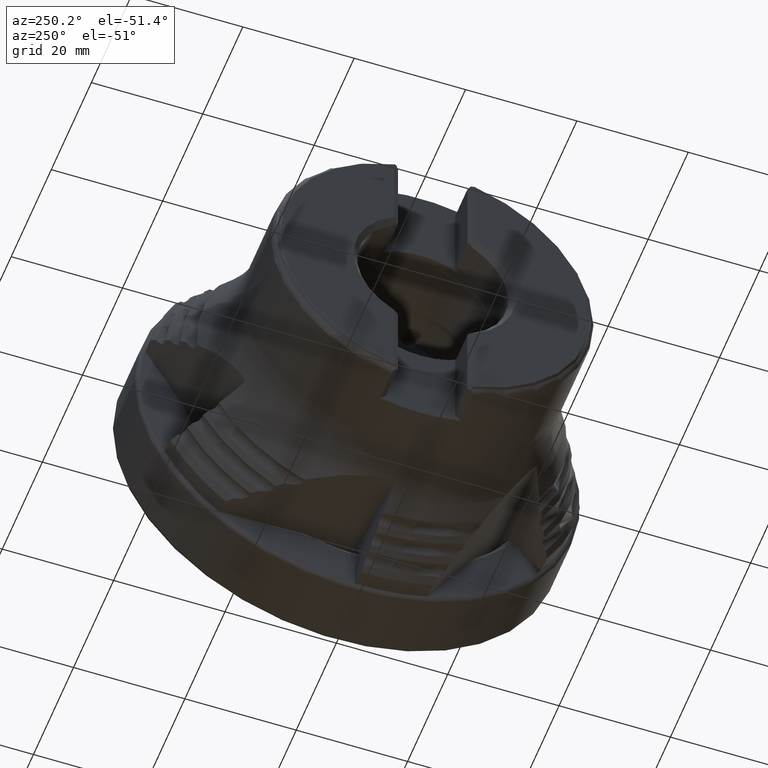
[diagram: clean part render]
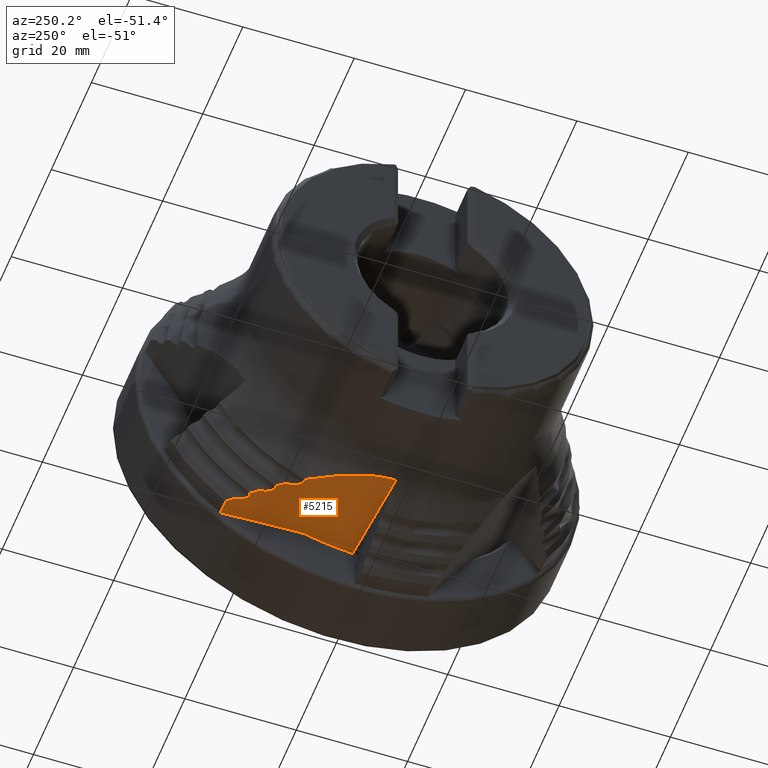
[diagram: same view with one face highlighted and labeled with its STEP entity id]
A machine part, auxiliary view. The second image highlights one B-rep face of the part: STEP entity #5215.
In plain terms, the highlighted planar face has unit normal (-0, -0, -1).
Its self-contained STEP definition (entity closure, byte-faithful):
#28 = VECTOR ( 'NONE', #4252, 1000.000000000000100 ) ;
#31 = CARTESIAN_POINT ( 'NONE',  ( -11.15176865470790100, 24.83485453953767300, -30.20000000000000300 ) ) ;
#38 = CARTESIAN_POINT ( 'NONE',  ( -24.68323503598216100, 10.52525373887807600, -30.19999999999999200 ) ) ;
#123 = CARTESIAN_POINT ( 'NONE',  ( -11.38472657982276800, 20.17031615068911400, -30.19999999999999900 ) ) ;
#192 = CARTESIAN_POINT ( 'NONE',  ( -19.75081145665694000, 18.05690504971553500, -30.19999999999999600 ) ) ;
#234 = CARTESIAN_POINT ( 'NONE',  ( -15.60835140516776700, 21.86658135694425200, -30.19999999999999900 ) ) ;
#353 = CARTESIAN_POINT ( 'NONE',  ( -18.50410983384340800, 18.46630114951239700, -30.19999999999999600 ) ) ;
#386 = CARTESIAN_POINT ( 'NONE',  ( -11.29499181378707500, 8.313862800456060900, -30.20000000000000300 ) ) ;
#427 = ORIENTED_EDGE ( 'NONE', *, *, #5874, .F. ) ;
#459 = CARTESIAN_POINT ( 'NONE',  ( -17.52841270701865300, 20.74172029161510300, -30.19999999999999600 ) ) ;
#521 = VERTEX_POINT ( 'NONE', #7641 ) ;
#572 = CARTESIAN_POINT ( 'NONE',  ( -25.11851311587522800, 9.634191474631345300, -30.19999999999999900 ) ) ;
#576 = CARTESIAN_POINT ( 'NONE',  ( -21.56860982534922800, 14.27920625437900300, -30.19999999999999900 ) ) ;
#636 = B_SPLINE_CURVE_WITH_KNOTS ( 'NONE', 3,
 ( #3550, #7074, #7655, #38, #572, #1774 ),
 .UNSPECIFIED., .F., .F.,
 ( 4, 2, 4 ),
 ( 0.03023065135700396500, 0.03317784385178212900, 0.03612503634656029400 ),
 .UNSPECIFIED. ) ;
#683 = EDGE_CURVE ( 'NONE', #6895, #4661, #2320, .T. ) ;
#723 = CARTESIAN_POINT ( 'NONE',  ( -26.71285435141210500, 5.687365923409885200, -30.19999999999999200 ) ) ;
#785 = CARTESIAN_POINT ( 'NONE',  ( -11.55632441456366700, 9.133016004765014600, -30.19999999999999600 ) ) ;
#834 = CARTESIAN_POINT ( 'NONE',  ( -15.91449155709633700, 21.60324361928368500, -30.19999999999999900 ) ) ;
#934 = CARTESIAN_POINT ( 'NONE',  ( -14.15146900721581200, 24.42255260260453700, -30.19999999999999600 ) ) ;
#940 = CARTESIAN_POINT ( 'NONE',  ( -9.746400671993710000, 4.834601600164617700, -30.19999999999999200 ) ) ;
#941 = CARTESIAN_POINT ( 'NONE',  ( -18.80206893080899600, 18.15424675954207200, -30.19999999999999600 ) ) ;
#966 = EDGE_CURVE ( 'NONE', #3708, #5080, #6037, .T. ) ;
#1023 = PLANE ( 'NONE',  #5163 ) ;
#1142 = CARTESIAN_POINT ( 'NONE',  ( -19.75081145665694000, 18.05690504971553500, -30.19999999999999600 ) ) ;
#1148 = CARTESIAN_POINT ( 'NONE',  ( -21.85596204691621100, 13.99924561896360600, -30.19999999999999600 ) ) ;
#1305 = CARTESIAN_POINT ( 'NONE',  ( -27.31015063050067200, 3.736343504964987800, -30.20000000000000300 ) ) ;
#1367 = CARTESIAN_POINT ( 'NONE',  ( -11.68791464155855500, 9.976532382528775500, -30.20000000000000600 ) ) ;
#1409 = CARTESIAN_POINT ( 'NONE',  ( -16.29204934966850300, 21.45685720348604200, -30.19999999999999600 ) ) ;
#1412 = CARTESIAN_POINT ( 'NONE',  ( -8.322202463033708100, 2.047701993977632600, -30.19999999999999900 ) ) ;
#1424 = B_SPLINE_CURVE_WITH_KNOTS ( 'NONE', 3,
 ( #7011, #6413, #7605, #4091 ),
 .UNSPECIFIED., .F., .F.,
 ( 4, 4 ),
 ( 0.01725225815166662300, 0.01787280613151392600 ),
 .UNSPECIFIED. ) ;
#1453 = EDGE_LOOP ( 'NONE', ( #6214, #6914, #3132, #5428, #2402, #5788, #427, #2240, #6773, #4276, #3052, #7656, #6392, #5001, #7294, #3417 ) ) ;
#1505 = CARTESIAN_POINT ( 'NONE',  ( -13.75000000000000500, 24.83485453953768000, -30.19999999999999900 ) ) ;
#1510 = CARTESIAN_POINT ( 'NONE',  ( -19.19057681533904600, 17.96103960005307700, -30.19999999999999600 ) ) ;
#1588 = LINE ( 'NONE', #3004, #28 ) ;
#1637 = EDGE_CURVE ( 'NONE', #6338, #7497, #6323, .T. ) ;
#1639 = CARTESIAN_POINT ( 'NONE',  ( -9.746400671993710000, 4.834601600164617700, -30.19999999999999200 ) ) ;
#1654 = DIRECTION ( 'NONE',  ( -1.000000000000000000, 0.0000000000000000000, 0.0000000000000000000 ) ) ;
#1729 = CARTESIAN_POINT ( 'NONE',  ( -22.06620212056546400, 13.88462237253740600, -30.19999999999999900 ) ) ;
#1774 = CARTESIAN_POINT ( 'NONE',  ( -25.50684292171271700, 8.721819758551866600, -30.19999999999999600 ) ) ;
#1878 = CARTESIAN_POINT ( 'NONE',  ( -27.58139160748605400, 2.535383956301225300, -30.19999999999999600 ) ) ;
#1928 = CARTESIAN_POINT ( 'NONE',  ( -10.11716968194207100, 5.335213516085066700, -30.19999999999999900 ) ) ;
#1950 = CARTESIAN_POINT ( 'NONE',  ( -11.70334166269675600, 10.83587396885197600, -30.19999999999999600 ) ) ;
#2005 = CARTESIAN_POINT ( 'NONE',  ( -16.69580294579626000, 21.48916205425075200, -30.19999999999998900 ) ) ;
#2057 = CARTESIAN_POINT ( 'NONE',  ( -17.87761546026976600, 20.33413344963372900, -30.19999999999999600 ) ) ;
#2091 = CARTESIAN_POINT ( 'NONE',  ( -17.87761546026976600, 20.33413344963372900, -30.19999999999999600 ) ) ;
#2121 = CARTESIAN_POINT ( 'NONE',  ( -19.62395062421903100, 17.99025123866928100, -30.19999999999999900 ) ) ;
#2220 = CARTESIAN_POINT ( 'NONE',  ( -39.11625303706828300, 39.97520562227809600, -30.19999999999999600 ) ) ;
#2240 = ORIENTED_EDGE ( 'NONE', *, *, #4215, .F. ) ;
#2320 = B_SPLINE_CURVE_WITH_KNOTS ( 'NONE', 3,
 ( #1928, #5354, #2651, #2616, #3235, #386 ),
 .UNSPECIFIED., .F., .F.,
 ( 4, 2, 4 ),
 ( 0.02316115845212830500, 0.02474065478567902300, 0.02632015111922974400 ),
 .UNSPECIFIED. ) ;
#2333 = CARTESIAN_POINT ( 'NONE',  ( -22.30430896777354700, 13.84283677142687500, -30.20000000000000300 ) ) ;
#2377 = CARTESIAN_POINT ( 'NONE',  ( -20.80951514497602900, 16.67211605601792000, -30.19999999999999600 ) ) ;
#2385 = CARTESIAN_POINT ( 'NONE',  ( -8.107448964456677800, 1.016862892185627300, -30.19999999999999900 ) ) ;
#2402 = ORIENTED_EDGE ( 'NONE', *, *, #3297, .F. ) ;
#2495 = CARTESIAN_POINT ( 'NONE',  ( -27.81145191009224900, 0.9135564209332066600, -30.20000000000000300 ) ) ;
#2504 = CARTESIAN_POINT ( 'NONE',  ( -11.29499181378707500, 8.313862800456060900, -30.20000000000000300 ) ) ;
#2537 = CARTESIAN_POINT ( 'NONE',  ( -25.50684292171271700, 8.721819758551866600, -30.19999999999999600 ) ) ;
#2571 = CARTESIAN_POINT ( 'NONE',  ( -15.14378062310508700, 22.67744381873194100, -30.19999999999999900 ) ) ;
#2616 = CARTESIAN_POINT ( 'NONE',  ( -10.85256593444406700, 7.347257706371297400, -30.20000000000000300 ) ) ;
#2634 = CARTESIAN_POINT ( 'NONE',  ( -8.509269875876652700, 2.546754344595158600, -30.19999999999999200 ) ) ;
#2651 = CARTESIAN_POINT ( 'NONE',  ( -10.45814452727039700, 6.354529779460324200, -30.20000000000000300 ) ) ;
#2708 = CARTESIAN_POINT ( 'NONE',  ( -14.94500000000001600, 23.58857181454614600, -30.19999999999999600 ) ) ;
#2762 = EDGE_CURVE ( 'NONE', #6713, #7094, #636, .T. ) ;
#2770 = CARTESIAN_POINT ( 'NONE',  ( -14.94500000000001600, 23.58857181454614600, -30.19999999999999600 ) ) ;
#2811 = DIRECTION ( 'NONE',  ( -1.000000000000000000, 0.0000000000000000000, 7.078851227747079100E-017 ) ) ;
#2922 = CARTESIAN_POINT ( 'NONE',  ( -20.87861415657658900, 16.04578449830764700, -30.19999999999999600 ) ) ;
#2948 = CARTESIAN_POINT ( 'NONE',  ( -22.54113627830197300, 13.89277369464251600, -30.19999999999998900 ) ) ;
#2992 = CARTESIAN_POINT ( 'NONE',  ( -8.185717882566381200, 1.538260730641631600, -30.19999999999999900 ) ) ;
#3004 = CARTESIAN_POINT ( 'NONE',  ( -35.49818372193255600, -1.379515884739018500, -30.19999999999999600 ) ) ;
#3036 = LINE ( 'NONE', #4063, #6186 ) ;
#3052 = ORIENTED_EDGE ( 'NONE', *, *, #4510, .F. ) ;
#3082 =( BOUNDED_CURVE ( )  B_SPLINE_CURVE ( 3, ( #3298, #6846, #4511, #940 ),
 .UNSPECIFIED., .F., .F. ) 
 B_SPLINE_CURVE_WITH_KNOTS ( ( 4, 4 ),
 ( 1.821127492253009800, 3.731640845368951800 ),
 .UNSPECIFIED. ) 
 CURVE ( )  GEOMETRIC_REPRESENTATION_ITEM ( )  RATIONAL_B_SPLINE_CURVE ( ( 1.000000000000000000, 0.7182661401576819800, 0.7182661401576819800, 1.000000000000000000 ) ) 
 REPRESENTATION_ITEM ( '' )  );
#3105 = CARTESIAN_POINT ( 'NONE',  ( -27.80026368968757200, -0.7060351491884651100, -30.19999999999999600 ) ) ;
#3132 = ORIENTED_EDGE ( 'NONE', *, *, #7054, .F. ) ;
#3155 = CARTESIAN_POINT ( 'NONE',  ( -13.75000000000000500, 24.83485453953768000, -30.19999999999999900 ) ) ;
#3186 = CARTESIAN_POINT ( 'NONE',  ( -15.30523399101711800, 22.31088986476669000, -30.19999999999999900 ) ) ;
#3197 = B_SPLINE_CURVE_WITH_KNOTS ( 'NONE', 3,
 ( #3692, #6018, #123, #4292 ),
 .UNSPECIFIED., .F., .F.,
 ( 4, 4 ),
 ( 0.02686989780889187700, 0.04087185695964125300 ),
 .UNSPECIFIED. ) ;
#3235 = CARTESIAN_POINT ( 'NONE',  ( -11.06650254681226500, 7.834519848700193000, -30.20000000000000300 ) ) ;
#3297 = EDGE_CURVE ( 'NONE', #5080, #6713, #3986, .T. ) ;
#3298 = CARTESIAN_POINT ( 'NONE',  ( -8.509269875876652700, 2.546754344595158600, -30.19999999999999200 ) ) ;
#3303 = CARTESIAN_POINT ( 'NONE',  ( -18.10358548277939100, 19.22497825154563600, -30.19999999999998900 ) ) ;
#3412 = EDGE_CURVE ( 'NONE', #521, #6338, #1588, .T. ) ;
#3417 = ORIENTED_EDGE ( 'NONE', *, *, #6719, .F. ) ;
#3530 = CARTESIAN_POINT ( 'NONE',  ( -21.11778104038128100, 15.11948758149909500, -30.19999999999999600 ) ) ;
#3550 = CARTESIAN_POINT ( 'NONE',  ( -22.68271114136756600, 13.97147460479308700, -30.19999999999999600 ) ) ;
#3556 = CARTESIAN_POINT ( 'NONE',  ( -22.68271114136756600, 13.97147460479308700, -30.19999999999999600 ) ) ;
#3589 = VERTEX_POINT ( 'NONE', #2057 ) ;
#3616 = CARTESIAN_POINT ( 'NONE',  ( -11.29499181378707500, 8.313862800456060900, -30.20000000000000300 ) ) ;
#3661 = CARTESIAN_POINT ( 'NONE',  ( -8.509269875876652700, 2.546754344595158600, -30.19999999999999200 ) ) ;
#3691 = B_SPLINE_CURVE_WITH_KNOTS ( 'NONE', 3,
 ( #7542, #7520, #459, #4610 ),
 .UNSPECIFIED., .F., .F.,
 ( 4, 4 ),
 ( 0.03124130217417128400, 0.03285322325653652200 ),
 .UNSPECIFIED. ) ;
#3692 = CARTESIAN_POINT ( 'NONE',  ( -11.70334166269675600, 10.83587396885197600, -30.19999999999999600 ) ) ;
#3698 = CARTESIAN_POINT ( 'NONE',  ( -25.50684292171271700, 8.721819758551866600, -30.19999999999999600 ) ) ;
#3708 = VERTEX_POINT ( 'NONE', #1142 ) ;
#3781 = CARTESIAN_POINT ( 'NONE',  ( -14.94500000000001600, 23.58857181454614600, -30.19999999999999600 ) ) ;
#3814 = CARTESIAN_POINT ( 'NONE',  ( -15.52217114093687700, 21.97124155716571200, -30.19999999999999600 ) ) ;
#3928 = CARTESIAN_POINT ( 'NONE',  ( -18.42204021725657300, 18.58532772873777000, -30.19999999999999900 ) ) ;
#3937 = EDGE_CURVE ( 'NONE', #5171, #5377, #3197, .T. ) ;
#3986 = B_SPLINE_CURVE_WITH_KNOTS ( 'NONE', 3,
 ( #4701, #6469, #2922, #7055, #3530, #7663, #4137, #576, #4725, #1148, #5316, #1729, #5903, #2333, #6491, #2948, #7079, #3556 ),
 .UNSPECIFIED., .F., .F.,
 ( 4, 2, 2, 2, 2, 2, 2, 2, 4 ),
 ( 0.01142859763087264300, 0.01239043078324640600, 0.01335226393562016300, 0.01383318051180703800, 0.01431409708799391600, 0.01455455537608735800, 0.01479501366418080200, 0.01503547195227424500, 0.01527593024036768900 ),
 .UNSPECIFIED. ) ;
#4022 = VERTEX_POINT ( 'NONE', #3155 ) ;
#4063 = CARTESIAN_POINT ( 'NONE',  ( -2.137813070779617600E-015, 24.83485453953768000, -30.19999999999999900 ) ) ;
#4091 = CARTESIAN_POINT ( 'NONE',  ( -10.11716968194207100, 5.335213516085066700, -30.19999999999999900 ) ) ;
#4137 = CARTESIAN_POINT ( 'NONE',  ( -21.39197742147337800, 14.54322428623832600, -30.19999999999999900 ) ) ;
#4215 = EDGE_CURVE ( 'NONE', #7469, #3589, #3691, .T. ) ;
#4252 = DIRECTION ( 'NONE',  ( 0.9961946980917455500, 0.08715574274765843000, -7.105891289430598600E-017 ) ) ;
#4262 = VERTEX_POINT ( 'NONE', #1639 ) ;
#4276 = ORIENTED_EDGE ( 'NONE', *, *, #6358, .F. ) ;
#4292 = CARTESIAN_POINT ( 'NONE',  ( -11.15176865470790100, 24.83485453953767300, -30.20000000000000300 ) ) ;
#4297 = CARTESIAN_POINT ( 'NONE',  ( -26.13755868578466800, 7.214243091507632300, -30.19999999999999200 ) ) ;
#4336 = B_SPLINE_CURVE_WITH_KNOTS ( 'NONE', 3,
 ( #2091, #5654, #6849, #3303, #7444, #3928, #353, #4513, #941, #5096, #1510, #5675, #2121, #6266 ),
 .UNSPECIFIED., .F., .F.,
 ( 4, 2, 2, 2, 2, 2, 4 ),
 ( 0.01035001272070113600, 0.01121002638595975200, 0.01207004005121836700, 0.01250004688384768000, 0.01293005371647699300, 0.01336006054910630400, 0.01379006738173561700 ),
 .UNSPECIFIED. ) ;
#4356 = CARTESIAN_POINT ( 'NONE',  ( -11.45155353298055100, 8.716797834271981000, -30.19999999999999900 ) ) ;
#4365 = CARTESIAN_POINT ( 'NONE',  ( -20.46339917246193400, 17.13896869178195800, -30.19999999999999600 ) ) ;
#4377 = CARTESIAN_POINT ( 'NONE',  ( -14.96983333564310700, 23.32378859772477500, -30.19999999999999200 ) ) ;
#4399 = CARTESIAN_POINT ( 'NONE',  ( -15.80436315979591400, 21.68269594773241200, -30.20000000000000300 ) ) ;
#4510 = EDGE_CURVE ( 'NONE', #5377, #4022, #3036, .T. ) ;
#4511 = CARTESIAN_POINT ( 'NONE',  ( -10.64084542284672900, 3.890091569820993900, -30.19999999999999200 ) ) ;
#4513 = CARTESIAN_POINT ( 'NONE',  ( -18.69427061877722100, 18.25073229342710600, -30.19999999999999900 ) ) ;
#4530 = EDGE_CURVE ( 'NONE', #4262, #6895, #1424, .T. ) ;
#4610 = CARTESIAN_POINT ( 'NONE',  ( -17.87761546026976600, 20.33413344963372900, -30.19999999999999600 ) ) ;
#4661 = VERTEX_POINT ( 'NONE', #3616 ) ;
#4701 = CARTESIAN_POINT ( 'NONE',  ( -20.80951514497602900, 16.67211605601792000, -30.19999999999999600 ) ) ;
#4725 = CARTESIAN_POINT ( 'NONE',  ( -21.67132622248670900, 14.15323029972766000, -30.19999999999999900 ) ) ;
#4859 = CARTESIAN_POINT ( 'NONE',  ( -26.97770564688056500, 4.915988259399085800, -30.19999999999999900 ) ) ;
#4928 = CARTESIAN_POINT ( 'NONE',  ( -11.59586044049129100, 9.342951506734753100, -30.20000000000000300 ) ) ;
#4975 = CARTESIAN_POINT ( 'NONE',  ( -16.15876405494869800, 21.48960445201750600, -30.19999999999998500 ) ) ;
#5001 = ORIENTED_EDGE ( 'NONE', *, *, #683, .F. ) ;
#5080 = VERTEX_POINT ( 'NONE', #6702 ) ;
#5087 = CARTESIAN_POINT ( 'NONE',  ( -8.107448964456677800, 1.016862892185627300, -30.19999999999999900 ) ) ;
#5096 = CARTESIAN_POINT ( 'NONE',  ( -19.05045291141807300, 18.00807286790550800, -30.19999999999999900 ) ) ;
#5114 = CARTESIAN_POINT ( 'NONE',  ( -11.70334166269675600, 10.83587396885197600, -30.19999999999999600 ) ) ;
#5163 = AXIS2_PLACEMENT_3D ( 'NONE', #2220, #6361, #2811 ) ;
#5171 = VERTEX_POINT ( 'NONE', #5114 ) ;
#5209 = CARTESIAN_POINT ( 'NONE',  ( -10.11716968194207100, 5.335213516085066700, -30.19999999999999900 ) ) ;
#5215 = ADVANCED_FACE ( 'NONE', ( #6177 ), #1023, .T. ) ;
#5311 = B_SPLINE_CURVE_WITH_KNOTS ( 'NONE', 3,
 ( #3698, #7212, #4297, #723, #4859, #1305, #5459, #1878, #6048, #2495, #6646, #3105 ),
 .UNSPECIFIED., .F., .F.,
 ( 4, 2, 2, 2, 2, 4 ),
 ( 0.001040522545606311100, 0.003487237129687488000, 0.005933951713768665500, 0.007157309005809253000, 0.008380666297849838700, 0.01082738088193101200 ),
 .UNSPECIFIED. ) ;
#5316 = CARTESIAN_POINT ( 'NONE',  ( -21.92321948217927000, 13.95374514388834800, -30.20000000000000300 ) ) ;
#5354 = CARTESIAN_POINT ( 'NONE',  ( -10.27700060576667700, 5.846780906240542000, -30.19999999999999900 ) ) ;
#5377 = VERTEX_POINT ( 'NONE', #31 ) ;
#5428 = ORIENTED_EDGE ( 'NONE', *, *, #2762, .F. ) ;
#5459 = CARTESIAN_POINT ( 'NONE',  ( -27.41002810408648600, 3.339319505988157700, -30.19999999999999600 ) ) ;
#5518 = CARTESIAN_POINT ( 'NONE',  ( -11.71475618975634000, 10.40602691791620800, -30.20000000000000600 ) ) ;
#5568 = CARTESIAN_POINT ( 'NONE',  ( -16.56419307643940500, 21.45693058711498200, -30.20000000000000300 ) ) ;
#5591 = B_SPLINE_CURVE_WITH_KNOTS ( 'NONE', 3,
 ( #3781, #4377, #6134, #2571, #6730, #3186, #7331, #3814, #234, #4399, #834, #4975, #1409, #5568, #2005, #6161 ),
 .UNSPECIFIED., .F., .F.,
 ( 4, 2, 2, 2, 2, 2, 2, 4 ),
 ( 0.009651296161953695400, 0.01045240116532475400, 0.01085295366701027900, 0.01125350616869580400, 0.01165405867038133000, 0.01205461117206685200, 0.01245516367375237300, 0.01285571617543789500 ),
 .UNSPECIFIED. ) ;
#5652 = CARTESIAN_POINT ( 'NONE',  ( -22.68271114136756600, 13.97147460479308700, -30.19999999999999600 ) ) ;
#5654 = CARTESIAN_POINT ( 'NONE',  ( -17.90194140031285000, 20.04984347896413500, -30.19999999999999200 ) ) ;
#5675 = CARTESIAN_POINT ( 'NONE',  ( -19.48005552630034700, 17.95159821949376800, -30.20000000000000300 ) ) ;
#5736 = EDGE_CURVE ( 'NONE', #4661, #5171, #5783, .T. ) ;
#5783 = B_SPLINE_CURVE_WITH_KNOTS ( 'NONE', 3,
 ( #2504, #6628, #4356, #785, #4928, #1367, #5518, #1950 ),
 .UNSPECIFIED., .F., .F.,
 ( 4, 2, 2, 4 ),
 ( 0.0005176704722284773700, 0.001167232059470629800, 0.001816793646712782400, 0.003115916821197086700 ),
 .UNSPECIFIED. ) ;
#5788 = ORIENTED_EDGE ( 'NONE', *, *, #966, .F. ) ;
#5874 = EDGE_CURVE ( 'NONE', #3589, #3708, #4336, .T. ) ;
#5903 = CARTESIAN_POINT ( 'NONE',  ( -22.14432829097132700, 13.86022426266744600, -30.19999999999999200 ) ) ;
#5933 = VERTEX_POINT ( 'NONE', #2770 ) ;
#6018 = CARTESIAN_POINT ( 'NONE',  ( -11.57940947396428800, 15.50289920472823900, -30.19999999999999900 ) ) ;
#6037 = B_SPLINE_CURVE_WITH_KNOTS ( 'NONE', 3,
 ( #192, #6771, #4365, #2377 ),
 .UNSPECIFIED., .F., .F.,
 ( 4, 4 ),
 ( 0.03051178531060043400, 0.03225458842295769000 ),
 .UNSPECIFIED. ) ;
#6048 = CARTESIAN_POINT ( 'NONE',  ( -27.65258854619283800, 2.128627433069361500, -30.20000000000000300 ) ) ;
#6134 = CARTESIAN_POINT ( 'NONE',  ( -15.02205188051863500, 23.05769901188634900, -30.19999999999999200 ) ) ;
#6161 = CARTESIAN_POINT ( 'NONE',  ( -16.81838298245955300, 21.54606939879803600, -30.19999999999999600 ) ) ;
#6177 = FACE_OUTER_BOUND ( 'NONE', #1453, .T. ) ;
#6186 = VECTOR ( 'NONE', #1654, 1000.000000000000000 ) ;
#6214 = ORIENTED_EDGE ( 'NONE', *, *, #1637, .F. ) ;
#6248 = EDGE_CURVE ( 'NONE', #5933, #7469, #5591, .T. ) ;
#6260 = CARTESIAN_POINT ( 'NONE',  ( -14.54991551036951800, 24.00723783522431600, -30.19999999999999600 ) ) ;
#6266 = CARTESIAN_POINT ( 'NONE',  ( -19.75081145665694000, 18.05690504971553500, -30.19999999999999600 ) ) ;
#6323 = B_SPLINE_CURVE_WITH_KNOTS ( 'NONE', 3,
 ( #2385, #2992, #1412, #2634 ),
 .UNSPECIFIED., .F., .F.,
 ( 4, 4 ),
 ( 0.01310321673169954900, 0.01467820951379559200 ),
 .UNSPECIFIED. ) ;
#6338 = VERTEX_POINT ( 'NONE', #5087 ) ;
#6358 = EDGE_CURVE ( 'NONE', #4022, #5933, #7619, .T. ) ;
#6361 = DIRECTION ( 'NONE',  ( -7.078851227747079100E-017, -6.193192332144401800E-018, -1.000000000000000000 ) ) ;
#6392 = ORIENTED_EDGE ( 'NONE', *, *, #5736, .F. ) ;
#6413 = CARTESIAN_POINT ( 'NONE',  ( -9.866215381947697000, 5.004520051305682700, -30.19999999999999900 ) ) ;
#6469 = CARTESIAN_POINT ( 'NONE',  ( -20.83278670820279600, 16.35782419007279700, -30.19999999999999900 ) ) ;
#6491 = CARTESIAN_POINT ( 'NONE',  ( -22.38631702550351900, 13.85008254146145900, -30.19999999999999900 ) ) ;
#6628 = CARTESIAN_POINT ( 'NONE',  ( -11.38761306667832500, 8.508171029214668800, -30.20000000000000300 ) ) ;
#6646 = CARTESIAN_POINT ( 'NONE',  ( -27.84451600624924300, 0.1036734210341672400, -30.19999999999999200 ) ) ;
#6702 = CARTESIAN_POINT ( 'NONE',  ( -20.80951514497602900, 16.67211605601792000, -30.19999999999999600 ) ) ;
#6713 = VERTEX_POINT ( 'NONE', #5652 ) ;
#6719 = EDGE_CURVE ( 'NONE', #7497, #4262, #3082, .T. ) ;
#6730 = CARTESIAN_POINT ( 'NONE',  ( -15.19168686315145100, 22.55322024194031300, -30.19999999999999900 ) ) ;
#6771 = CARTESIAN_POINT ( 'NONE',  ( -20.11021814931791200, 17.60034827648123100, -30.19999999999999600 ) ) ;
#6773 = ORIENTED_EDGE ( 'NONE', *, *, #6248, .F. ) ;
#6846 = CARTESIAN_POINT ( 'NONE',  ( -10.06671710329573200, 2.828346195482708900, -30.19999999999999200 ) ) ;
#6849 = CARTESIAN_POINT ( 'NONE',  ( -17.95143176866385600, 19.76826666350456900, -30.19999999999999900 ) ) ;
#6895 = VERTEX_POINT ( 'NONE', #5209 ) ;
#6914 = ORIENTED_EDGE ( 'NONE', *, *, #3412, .F. ) ;
#7011 = CARTESIAN_POINT ( 'NONE',  ( -9.746400671993710000, 4.834601600164617700, -30.19999999999999200 ) ) ;
#7054 = EDGE_CURVE ( 'NONE', #7094, #521, #5311, .T. ) ;
#7055 = CARTESIAN_POINT ( 'NONE',  ( -21.02130128752318300, 15.42680061333389800, -30.19999999999999200 ) ) ;
#7074 = CARTESIAN_POINT ( 'NONE',  ( -23.22418783755549800, 13.13078759315633300, -30.19999999999999900 ) ) ;
#7079 = CARTESIAN_POINT ( 'NONE',  ( -22.61527756746157500, 13.92817144936441700, -30.20000000000000300 ) ) ;
#7094 = VERTEX_POINT ( 'NONE', #2537 ) ;
#7154 = CARTESIAN_POINT ( 'NONE',  ( -16.81838298245955300, 21.54606939879803600, -30.19999999999999600 ) ) ;
#7212 = CARTESIAN_POINT ( 'NONE',  ( -25.82696866743384600, 7.969691872424489200, -30.19999999999999200 ) ) ;
#7294 = ORIENTED_EDGE ( 'NONE', *, *, #4530, .F. ) ;
#7331 = CARTESIAN_POINT ( 'NONE',  ( -15.37121965638471700, 22.19241438685730500, -30.19999999999999200 ) ) ;
#7444 = CARTESIAN_POINT ( 'NONE',  ( -18.20603751772149400, 18.95904086463761100, -30.19999999999999600 ) ) ;
#7469 = VERTEX_POINT ( 'NONE', #7154 ) ;
#7497 = VERTEX_POINT ( 'NONE', #3661 ) ;
#7520 = CARTESIAN_POINT ( 'NONE',  ( -17.17519696932338400, 21.14557020625912300, -30.19999999999999600 ) ) ;
#7542 = CARTESIAN_POINT ( 'NONE',  ( -16.81838298245955300, 21.54606939879803600, -30.19999999999999600 ) ) ;
#7605 = CARTESIAN_POINT ( 'NONE',  ( -9.989947785061852800, 5.171275450627068600, -30.19999999999999900 ) ) ;
#7619 = B_SPLINE_CURVE_WITH_KNOTS ( 'NONE', 3,
 ( #1505, #934, #6260, #2708 ),
 .UNSPECIFIED., .F., .F.,
 ( 4, 4 ),
 ( 0.03218805826332985600, 0.03391622380056331900 ),
 .UNSPECIFIED. ) ;
#7641 = CARTESIAN_POINT ( 'NONE',  ( -27.80026368968757200, -0.7060351491884651100, -30.19999999999999600 ) ) ;
#7655 = CARTESIAN_POINT ( 'NONE',  ( -23.73656286504112200, 12.27282980939230600, -30.20000000000000300 ) ) ;
#7656 = ORIENTED_EDGE ( 'NONE', *, *, #3937, .F. ) ;
#7663 = CARTESIAN_POINT ( 'NONE',  ( -21.31696681489106700, 14.68334895660972200, -30.19999999999999600 ) ) ;